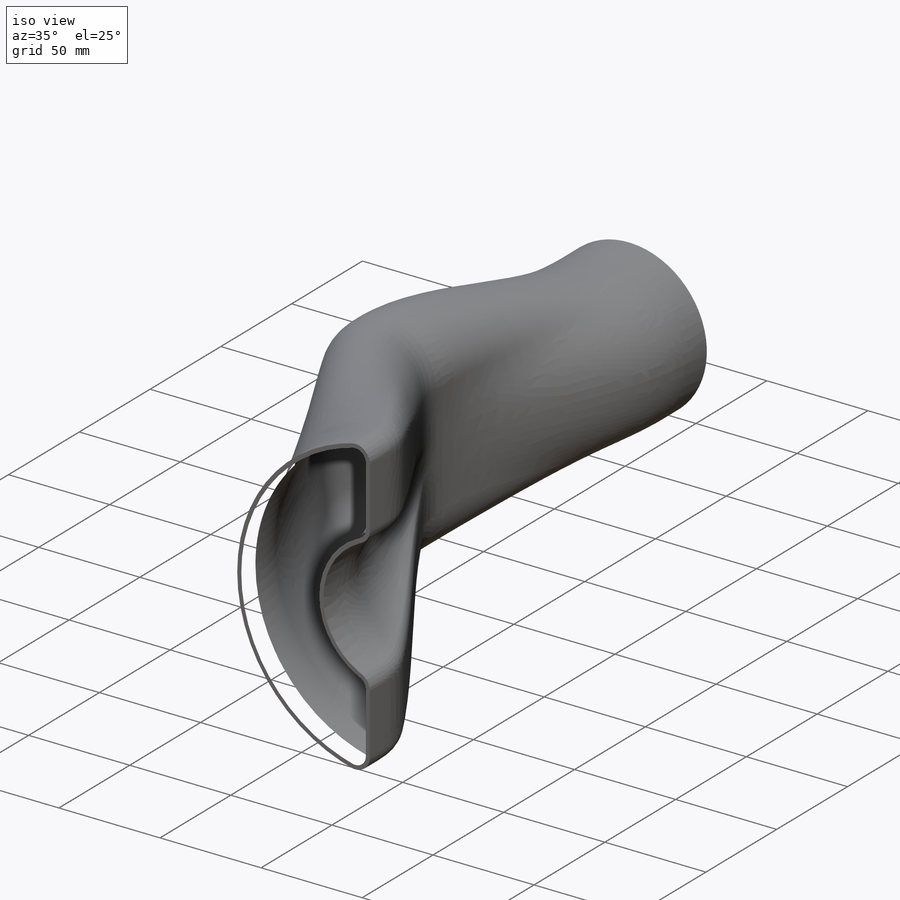
[diagram: iso view]
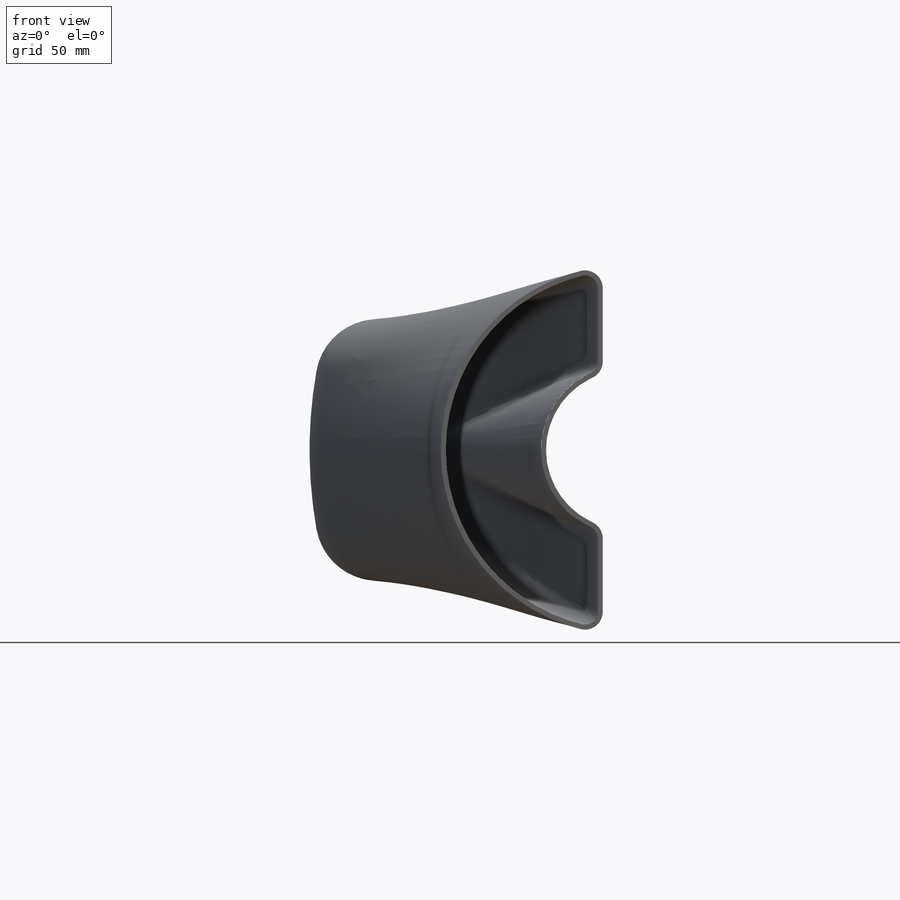
[diagram: front view]
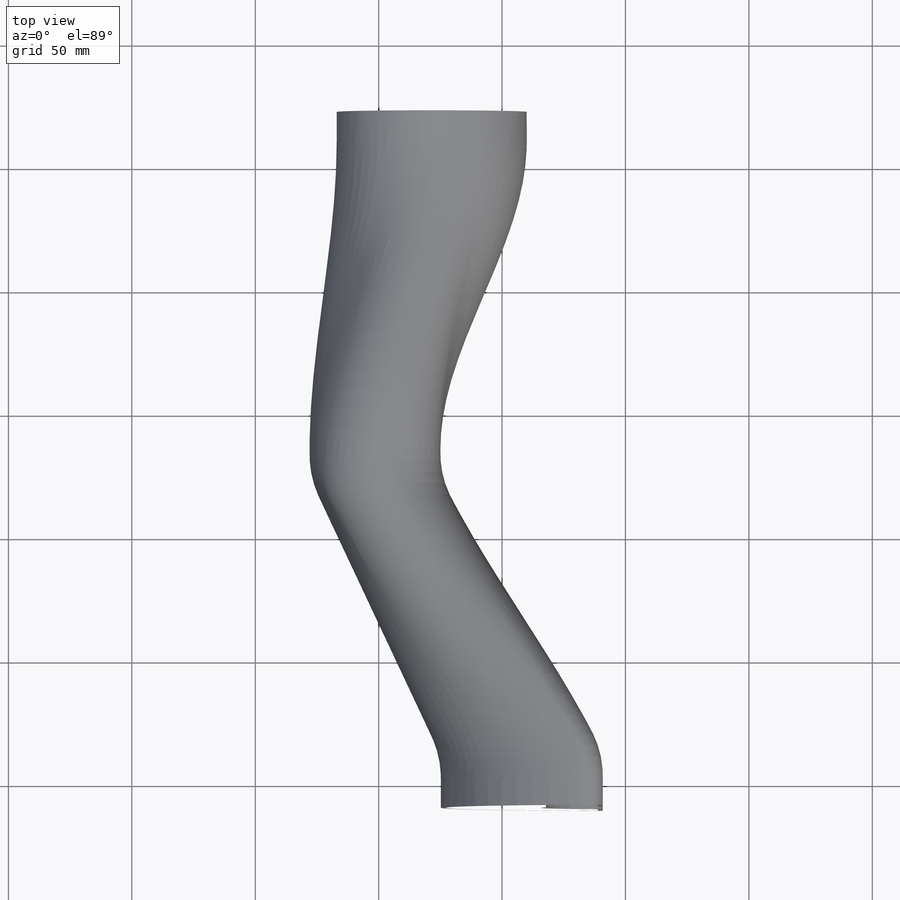
[diagram: top view]
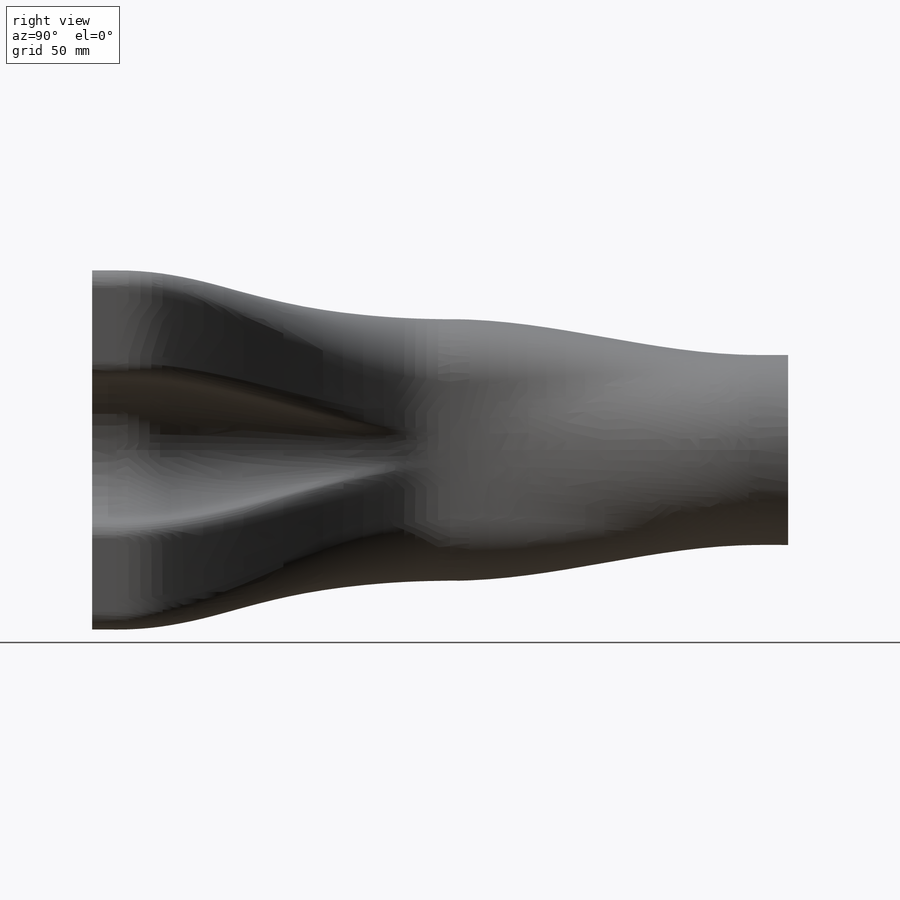
[diagram: right view]
SOLIDWORKS PART (.sldprt)
format: sldprt  version: not decoded by parser v0  size: 1,143,296 bytes
history: native  units: mm
features: sketch x11, extrude x3, plane x2, chamfer x2, material x1, mirror x1, shell x1, hole x1, pattern_circular x1, fillet x1 (+11 scaffold rows collapsed)
feature tree (35):
  scaffold x11  (default folders/planes/origin — collapsed)
  material  "ABS"
  plane  "rec"  Offset=135mm
  plane  "rnd"  Offset=125mm
  sketch  "rough target"
  sketch  "D"  dims[D1=149.6mm D2=64.4mm D4=7.2mm D3=9.2mm D5=100.0mm]
  sketch  "s rec"  dims[c1.D3=185.0mm c1.D1=95.0mm c1.D2=106.0mm c2.D3=40.0mm c2.D1=75.0mm c2.D4=57.0mm]
  sketch  "loft"  dims[D1=40.0mm D2=2.0mm]
  sketch  "Sketch6"
  sketch  "s rnd"  dims[D1=77.0mm D2=40.0mm]
  mirror  "Mirror1"
  sketch  "Sketch7"
  extrude  "Boss-Extrude3"  Depth=10mm
  sketch  "Sketch8"
  extrude  "Boss-Extrude4"  Depth=20mm
  shell  "Shell1"  Thickness=2mm
  sketch  "Sketch9"  dims[D1=110.0mm]
  extrude  "Boss-Extrude5"  Depth=4mm
  hole  "Ø3.5 (3.5) Diameter Hole1"  Diameter=3.5mm Depth=177.221781mm
  sketch  "Sketch11"  dims[D1=50.8mm]
  sketch  "Sketch10"  dims[hole-wizard template sketch: 46 standard entries collapsed; hole parameters kept: c15.Thru Hole Dia.=3.5mm c15.Thru Hole Depth=~177.221781mm c15.Near C'Sink Dia.=4.0mm c15.D4=~3.666174mm c15.Near C'Sink Angle=90.0deg c15.Far C'Sink Dia.=4.0mm c15.D6=~9.919017mm c15.Far C'Sink Angle=90.0deg]
  pattern_circular  "CirPattern1"  Count=8 Angle=360deg
  chamfer  "Chamfer2"  Distance=1.25mm Angle=75deg
  fillet  "Fillet4"  Radius=4mm
  chamfer  "Chamfer1"  Distance=0.5mm Angle=45deg
decode coverage: 16 of 21 modeling features carry decoded parameters
note: ~ marks probable driven/reference dimensions
note: suppression state not decoded; provenance and decode notes live in map.json
